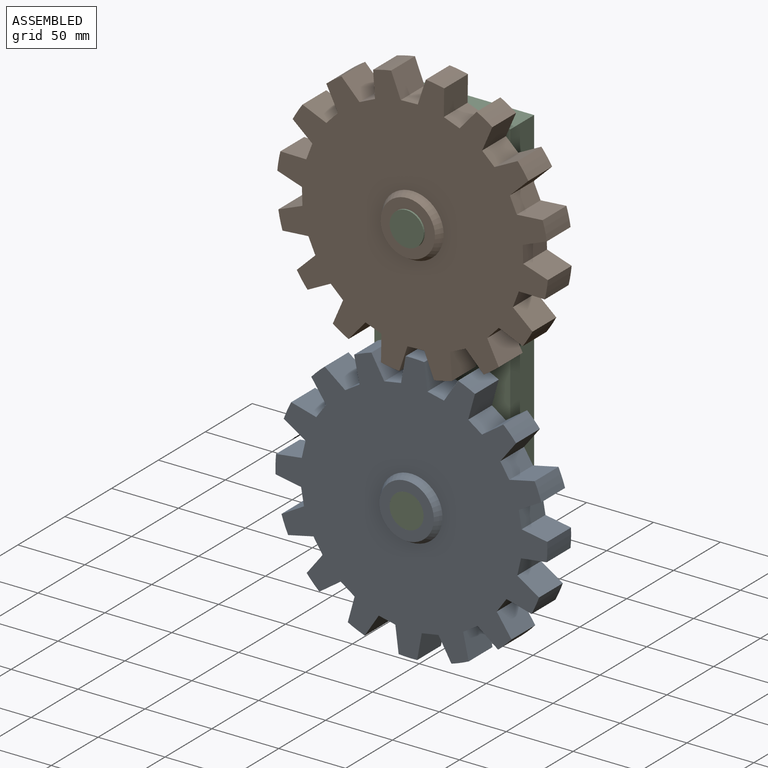
[diagram: assembled view]
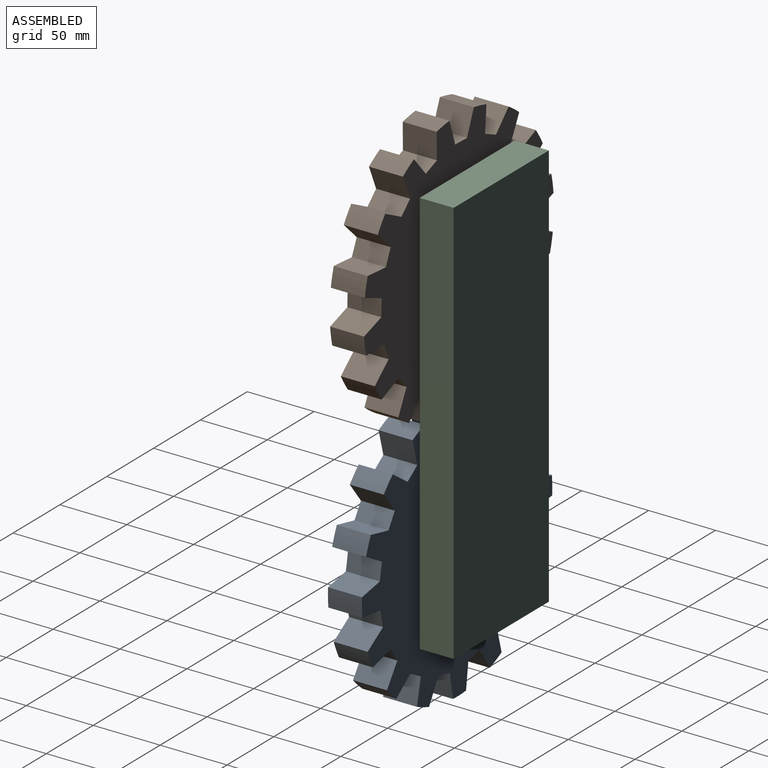
[diagram: assembled view, second angle]
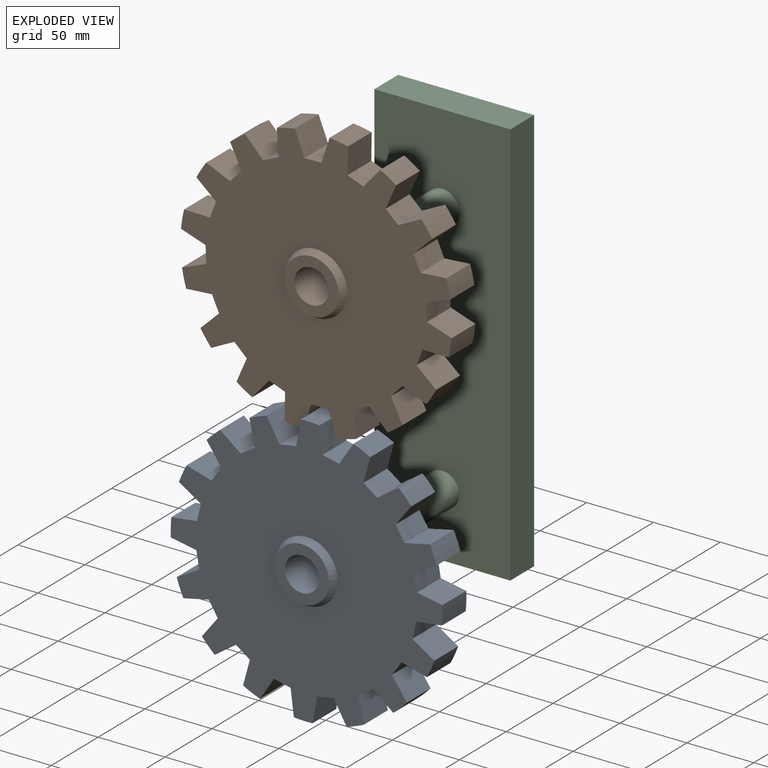
[diagram: exploded view]
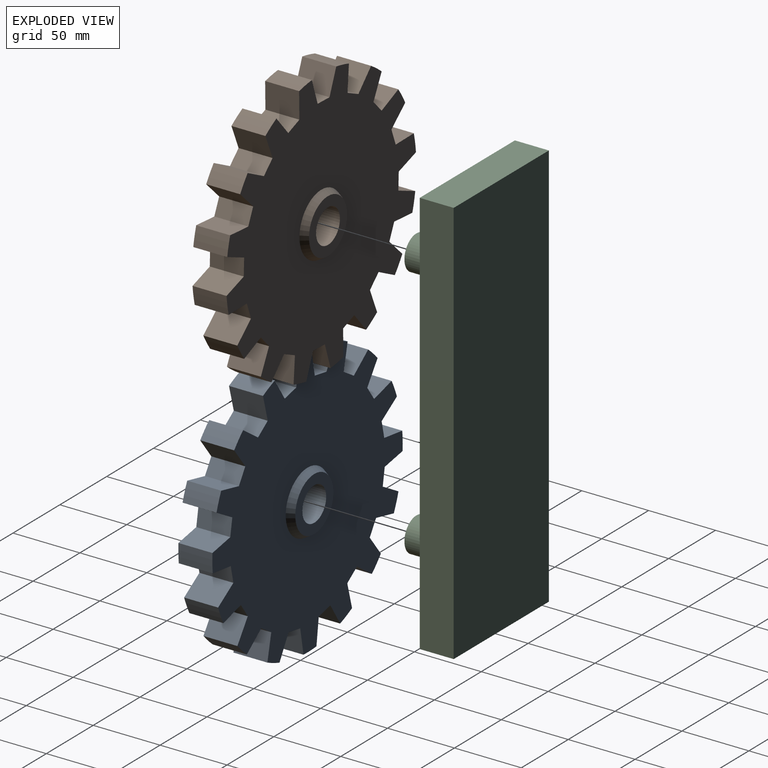
[diagram: exploded view, second angle]
ASSEMBLY  parts=3 mates=2
PART A: 71 faces, bbox 35.6x201.5x201.5 mm
  f0: cylinder r=101.6mm len=25.4mm, axis (-1,0,0), area 352.2mm2, adj f3,f6,f64,f65
  f1: plane 25.4x11.73mm, normal (0,0.38,0.92), area 322.6mm2, adj f2,f3,f64,f65
  f2: plane 25.4x19.37mm, normal (0,1,-0.04), area 492.4mm2, adj f1,f60,f64,f65
  f3: plane 25.4x14.29mm, normal (0,-0.74,0.68), area 492.4mm2, adj f0,f1,f64,f65
  f4: cylinder r=101.6mm len=25.4mm, axis (-1,0,0), area 352.2mm2, adj f7,f10,f64,f65
  f5: plane 25.4x8.98mm, normal (0,0.71,0.71), area 322.6mm2, adj f6,f7,f64,f65
  f6: plane 25.4x17.57mm, normal (0,0.91,-0.42), area 492.4mm2, adj f0,f5,f64,f65
  f7: plane 25.4x17.57mm, normal (0,-0.42,0.91), area 492.4mm2, adj f4,f5,f64,f65
  f8: cylinder r=101.6mm len=25.4mm, axis (-1,0,0), area 352.2mm2, adj f11,f14,f64,f65
  f9: plane 25.4x11.73mm, normal (0,0.92,0.38), area 322.6mm2, adj f10,f11,f64,f65
  f10: plane 25.4x14.29mm, normal (0,0.68,-0.74), area 492.4mm2, adj f4,f9,f64,f65
  f11: plane 25.4x19.37mm, normal (0,-0.04,1), area 492.4mm2, adj f8,f9,f64,f65
  f12: cylinder r=101.6mm len=25.4mm, axis (-1,0,0), area 352.2mm2, adj f15,f18,f64,f65
  f13: plane 25.4x12.7mm, normal (0,1,0), area 322.6mm2, adj f14,f15,f64,f65
  f14: plane 25.4x18.22mm, normal (0,0.34,-0.94), area 492.4mm2, adj f8,f13,f64,f65
  f15: plane 25.4x18.22mm, normal (0,0.34,0.94), area 492.4mm2, adj f12,f13,f64,f65
  f16: cylinder r=101.6mm len=25.4mm, axis (-1,0,0), area 352.2mm2, adj f19,f22,f64,f65
  f17: plane 25.4x11.73mm, normal (0,0.92,-0.38), area 322.6mm2, adj f18,f19,f64,f65
  f18: plane 25.4x19.37mm, normal (0,-0.04,-1), area 492.4mm2, adj f12,f17,f64,f65
  f19: plane 25.4x14.29mm, normal (0,0.68,0.74), area 492.4mm2, adj f16,f17,f64,f65
  f20: cylinder r=101.6mm len=25.4mm, axis (-1,0,0), area 352.2mm2, adj f23,f26,f64,f65
  f21: plane 25.4x8.98mm, normal (0,0.71,-0.71), area 322.6mm2, adj f22,f23,f64,f65
  f22: plane 25.4x17.57mm, normal (0,-0.42,-0.91), area 492.4mm2, adj f16,f21,f64,f65
  f23: plane 25.4x17.57mm, normal (0,0.91,0.42), area 492.4mm2, adj f20,f21,f64,f65
  f24: cylinder r=101.6mm len=25.4mm, axis (-1,0,0), area 352.2mm2, adj f27,f30,f64,f65
  f25: plane 25.4x11.73mm, normal (0,0.38,-0.92), area 322.6mm2, adj f26,f27,f64,f65
  f26: plane 25.4x14.29mm, normal (0,-0.74,-0.68), area 492.4mm2, adj f20,f25,f64,f65
  f27: plane 25.4x19.37mm, normal (0,1,0.04), area 492.4mm2, adj f24,f25,f64,f65
  f28: cylinder r=101.6mm len=25.4mm, axis (-1,0,0), area 352.2mm2, adj f31,f34,f64,f65
  f29: plane 25.4x12.7mm, normal (0,0,-1), area 322.6mm2, adj f30,f31,f64,f65
  f30: plane 25.4x18.22mm, normal (0,-0.94,-0.34), area 492.4mm2, adj f24,f29,f64,f65
  f31: plane 25.4x18.22mm, normal (0,0.94,-0.34), area 492.4mm2, adj f28,f29,f64,f65
  f32: cylinder r=101.6mm len=25.4mm, axis (-1,0,0), area 352.2mm2, adj f35,f38,f64,f65
  f33: plane 25.4x11.73mm, normal (0,-0.38,-0.92), area 322.6mm2, adj f34,f35,f64,f65
  f34: plane 25.4x19.37mm, normal (0,-1,0.04), area 492.4mm2, adj f28,f33,f64,f65
  f35: plane 25.4x14.29mm, normal (0,0.74,-0.68), area 492.4mm2, adj f32,f33,f64,f65
  f36: cylinder r=101.6mm len=25.4mm, axis (-1,0,0), area 352.2mm2, adj f39,f42,f64,f65
  f37: plane 25.4x8.98mm, normal (0,-0.71,-0.71), area 322.6mm2, adj f38,f39,f64,f65
  f38: plane 25.4x17.57mm, normal (0,-0.91,0.42), area 492.4mm2, adj f32,f37,f64,f65
  f39: plane 25.4x17.57mm, normal (0,0.42,-0.91), area 492.4mm2, adj f36,f37,f64,f65
  f40: cylinder r=101.6mm len=25.4mm, axis (-1,0,0), area 352.2mm2, adj f43,f46,f64,f65
  f41: plane 25.4x11.73mm, normal (0,-0.92,-0.38), area 322.6mm2, adj f42,f43,f64,f65
  f42: plane 25.4x14.29mm, normal (0,-0.68,0.74), area 492.4mm2, adj f36,f41,f64,f65
  f43: plane 25.4x19.37mm, normal (0,0.04,-1), area 492.4mm2, adj f40,f41,f64,f65
  f44: cylinder r=101.6mm len=25.4mm, axis (-1,0,0), area 352.2mm2, adj f47,f50,f64,f65
  f45: plane 25.4x12.7mm, normal (0,-1,0), area 322.6mm2, adj f46,f47,f64,f65
  f46: plane 25.4x18.22mm, normal (0,-0.34,0.94), area 492.4mm2, adj f40,f45,f64,f65
  f47: plane 25.4x18.22mm, normal (0,-0.34,-0.94), area 492.4mm2, adj f44,f45,f64,f65
  f48: cylinder r=101.6mm len=25.4mm, axis (-1,0,0), area 352.2mm2, adj f51,f54,f64,f65
  f49: plane 25.4x11.73mm, normal (0,-0.92,0.38), area 322.6mm2, adj f50,f51,f64,f65
  f50: plane 25.4x19.37mm, normal (0,0.04,1), area 492.4mm2, adj f44,f49,f64,f65
  f51: plane 25.4x14.29mm, normal (0,-0.68,-0.74), area 492.4mm2, adj f48,f49,f64,f65
  f52: cylinder r=101.6mm len=25.4mm, axis (-1,0,0), area 352.2mm2, adj f55,f58,f64,f65
  f53: plane 25.4x8.98mm, normal (0,-0.71,0.71), area 322.6mm2, adj f54,f55,f64,f65
  f54: plane 25.4x17.57mm, normal (0,0.42,0.91), area 492.4mm2, adj f48,f53,f64,f65
  f55: plane 25.4x17.57mm, normal (0,-0.91,-0.42), area 492.4mm2, adj f52,f53,f64,f65
  f56: cylinder r=101.6mm len=25.4mm, axis (-1,0,0), area 352.2mm2, adj f59,f64,f65,f69
  f57: plane 25.4x11.73mm, normal (0,-0.38,0.92), area 322.6mm2, adj f58,f59,f64,f65
  f58: plane 25.4x14.29mm, normal (0,0.74,0.68), area 492.4mm2, adj f52,f57,f64,f65
  f59: plane 25.4x19.37mm, normal (0,-1,-0.04), area 492.4mm2, adj f56,f57,f64,f65
  f60: cylinder r=101.6mm len=25.4mm, axis (-1,0,0), area 352.2mm2, adj f2,f64,f65,f70
  f61: cylinder r=12.7mm len=35.56mm, axis (-1,0,0), area 2837.6mm2, adj f62,f67
  f62: plane 40.64x40.64mm, normal (1,0,0), area 790.5mm2, adj f61,f63
  f63: cone r=20.32mm half-angle=30deg, axis (-1,0,0), area 803mm2, adj f62,f64
  f64: plane 201.53x201.53mm, normal (1,0,0), area 24865.4mm2, adj f0,f1,f2,f3,f4,f5,f6,f7
  f65: plane 201.53x201.53mm, normal (-1,0,0), area 24865.4mm2, adj f0,f1,f2,f3,f4,f5,f6,f7
  f66: cone r=20.32mm half-angle=30deg, axis (1,0,0), area 803mm2, adj f65,f67
  f67: plane 40.64x40.64mm, normal (-1,0,0), area 790.5mm2, adj f61,f66
  f68: plane 25.4x12.7mm, normal (0,0,1), area 322.6mm2, adj f64,f65,f69,f70
  f69: plane 25.4x18.22mm, normal (0,0.94,0.34), area 492.4mm2, adj f56,f64,f65,f68
  f70: plane 25.4x18.22mm, normal (0,-0.94,0.34), area 492.4mm2, adj f60,f64,f65,f68
PART B: same geometry as A
PART C: 10 faces, bbox 101.6x63.5x304.8 mm
  f0: plane 101.6x25.4mm, normal (0,0,1), area 2580.6mm2, adj f1,f3,f4,f5
  f1: plane 304.8x25.4mm, normal (-1,0,0), area 7741.9mm2, adj f0,f2,f4,f5
  f2: plane 101.6x25.4mm, normal (0,0,-1), area 2580.6mm2, adj f1,f3,f4,f5
  f3: plane 304.8x25.4mm, normal (1,0,0), area 7741.9mm2, adj f0,f2,f4,f5
  f4: plane 304.8x101.6mm, normal (0,-1,0), area 29954.3mm2, adj f0,f1,f2,f3,f6,f8
  f5: plane 304.8x101.6mm, normal (0,1,0), area 30967.7mm2, adj f0,f1,f2,f3
  f6: cylinder r=12.7mm len=38.1mm, axis (0,1,0), area 3040.2mm2, adj f4,f7
  f7: plane 25.4x25.4mm, normal (0,-1,0), area 506.7mm2, adj f6
  f8: cylinder r=12.7mm len=38.1mm, axis (0,1,0), area 3040.2mm2, adj f4,f9
  f9: plane 25.4x25.4mm, normal (0,-1,0), area 506.7mm2, adj f8
PLACE A rot(axis=(-0.69,-0.69,0.22),155.3deg) t=(0,-45.72,-104.41)mm
PLACE B rot(axis=(-0.21,-0.21,0.96),92.5deg) t=(0,-44.45,86.09)mm
PLACE C at identity fixed
MATE revolute C.f8 <-> A.f0  axis (0,-1,0) through (0,-63.5,-104.41)mm
MATE revolute C.f6 <-> B.f0  axis (0,1,0) through (0,-44.45,86.09)mm
